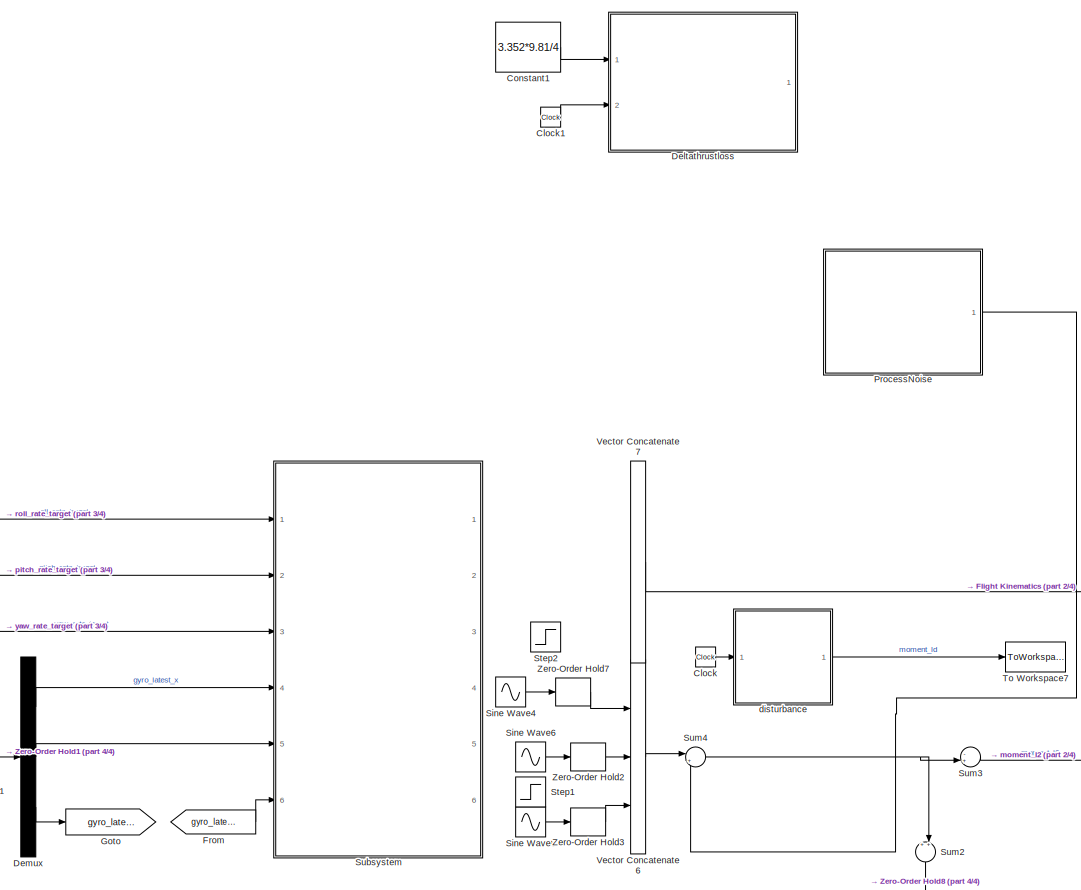
[diagram: root canvas - part 1/4, top center region]
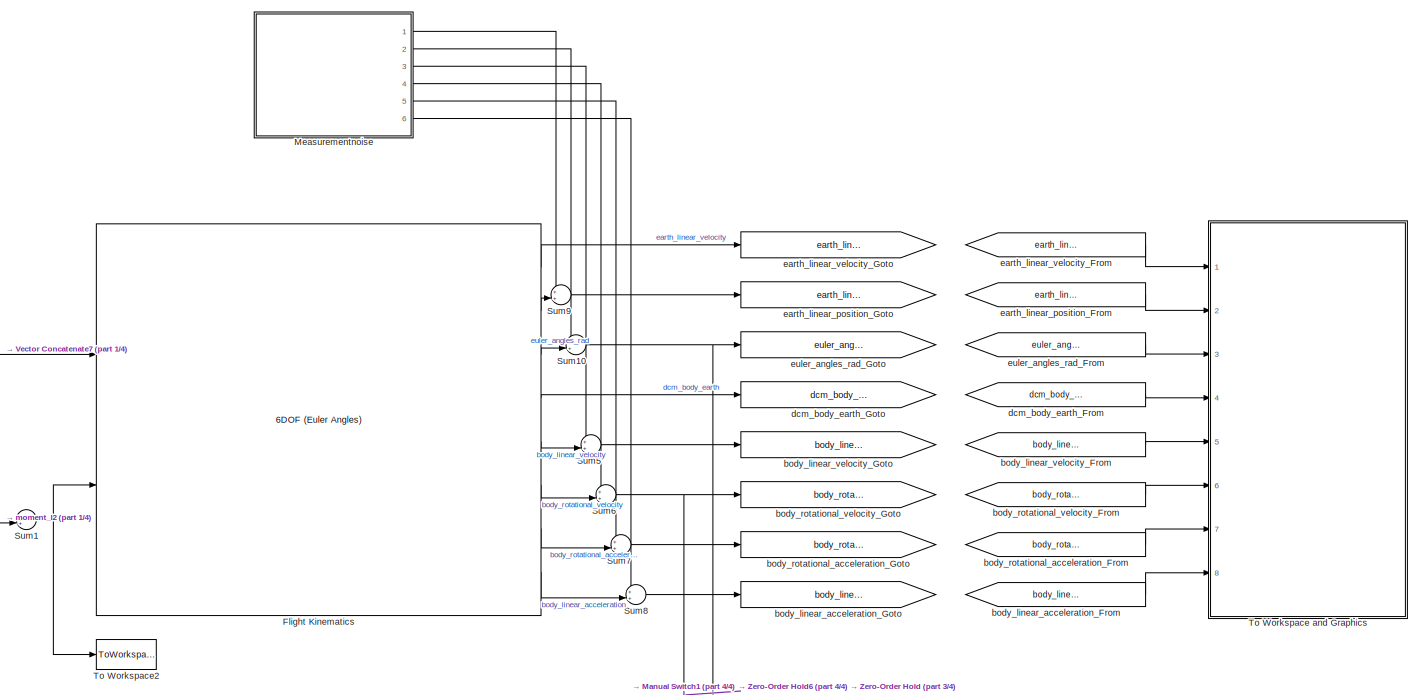
[diagram: root canvas - part 2/4, middle right region]
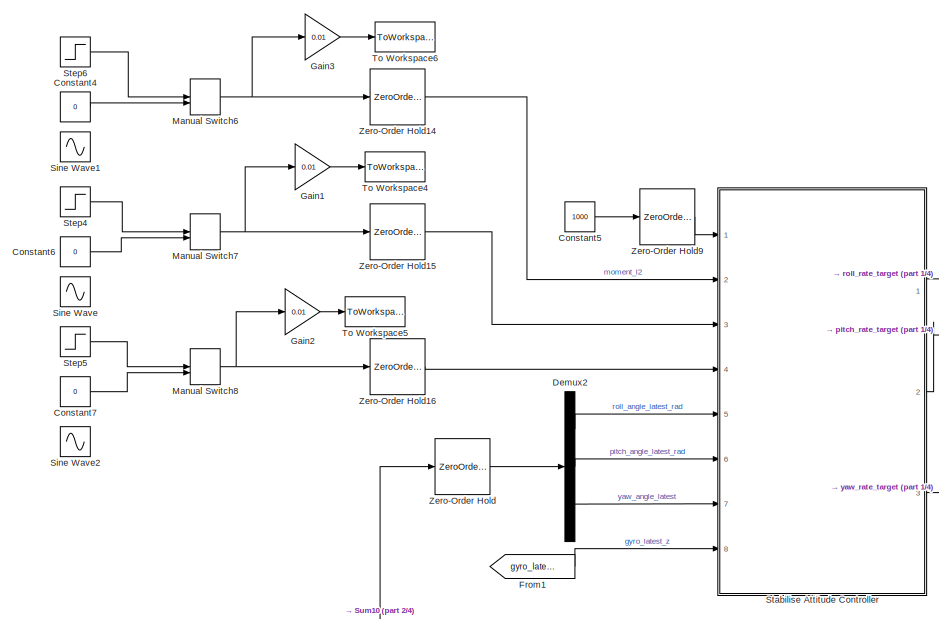
[diagram: root canvas - part 3/4, middle left region]
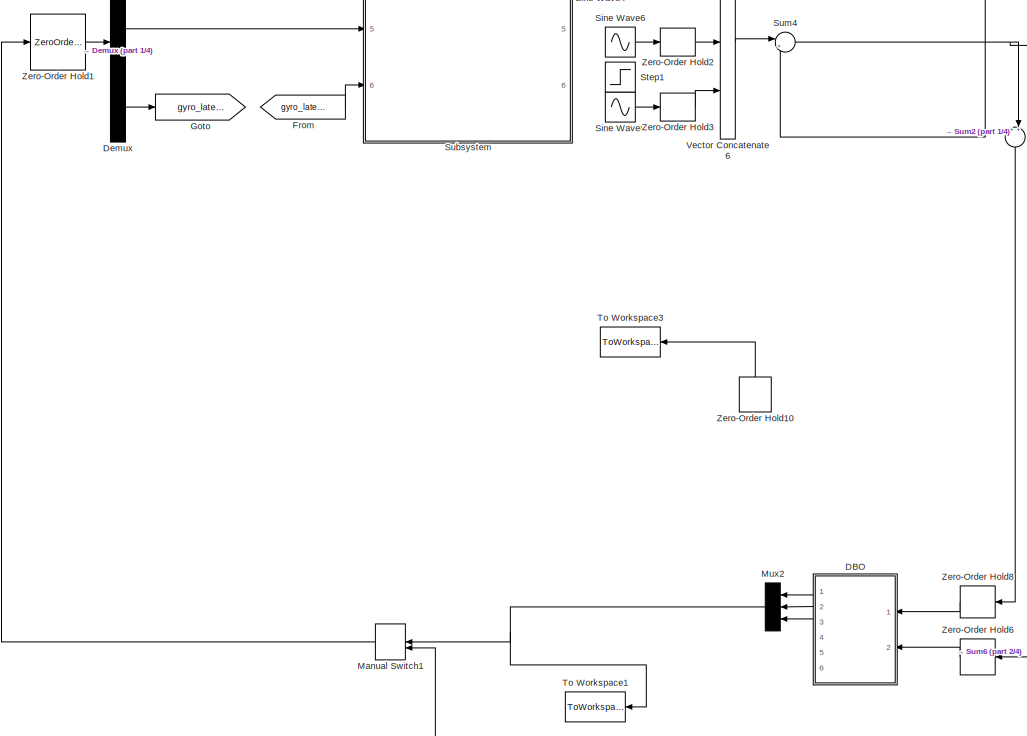
[diagram: root canvas - part 4/4, bottom center region]
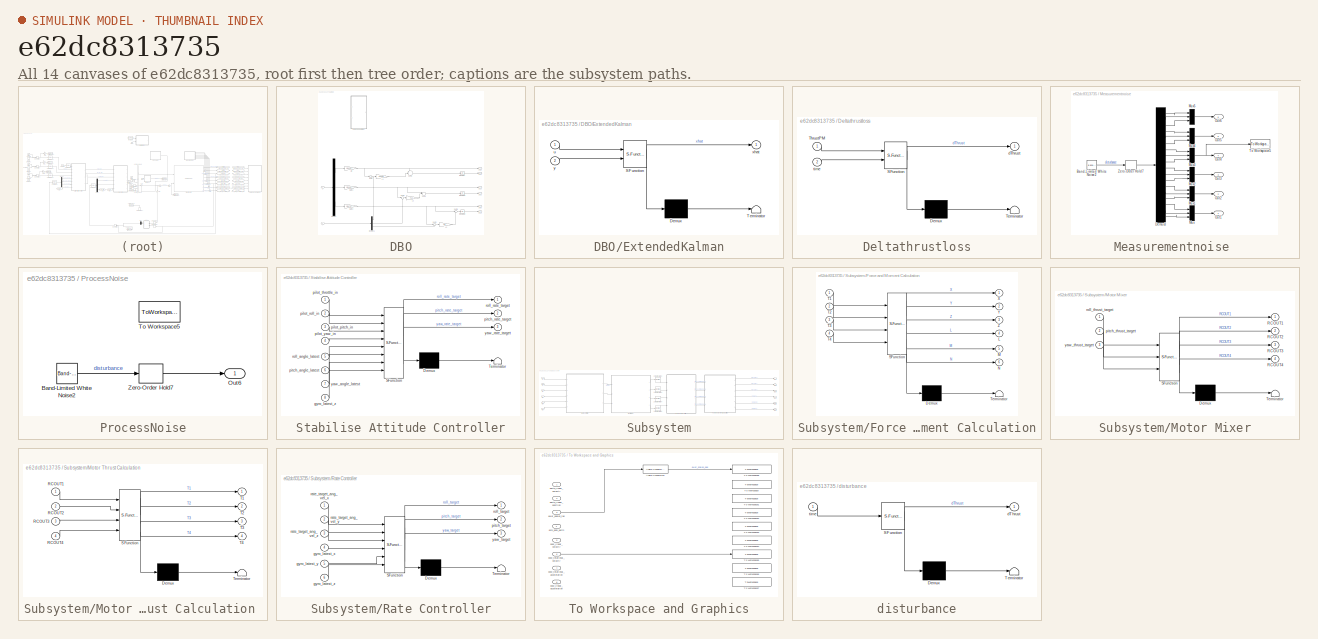
[diagram: thumbnail index - all 14 canvases of the model, root first then tree order]
MODEL slx_e62dc8313735
KIND model
CONFIG AbsTol = auto
CONFIG FixedStep = Ts
CONFIG MaxStep = auto
CONFIG MinStep = auto
CONFIG RelTol = 1e-3
CONFIG SampleTimeConstraint = Unconstrained
CONFIG Solver = VariableStepAuto
CONFIG SolverMode = Auto
CONFIG SolverName = VariableStepAuto
CONFIG StartTime = 0.0
CONFIG StopTime = 10
WORKSPACE source: MAT-file member
WORKSPACE MCOS: class17 (value not decoded)
BLOCK [Clock] Clock
BLOCK [Clock] Clock1
BLOCK [Constant] Constant1
  SampleTime = Ts
  Value = 3.352*9.81/4
BLOCK [Constant] Constant4
  SampleTime = 0
  Value = 0
BLOCK [Constant] Constant5
  SampleTime = Ts
  Value = 1000
BLOCK [Constant] Constant6
  SampleTime = 0
  Value = 0
BLOCK [Constant] Constant7
  SampleTime = 0
  Value = 0
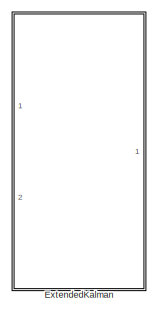
[diagram: DBO - part 1/2, top left region]
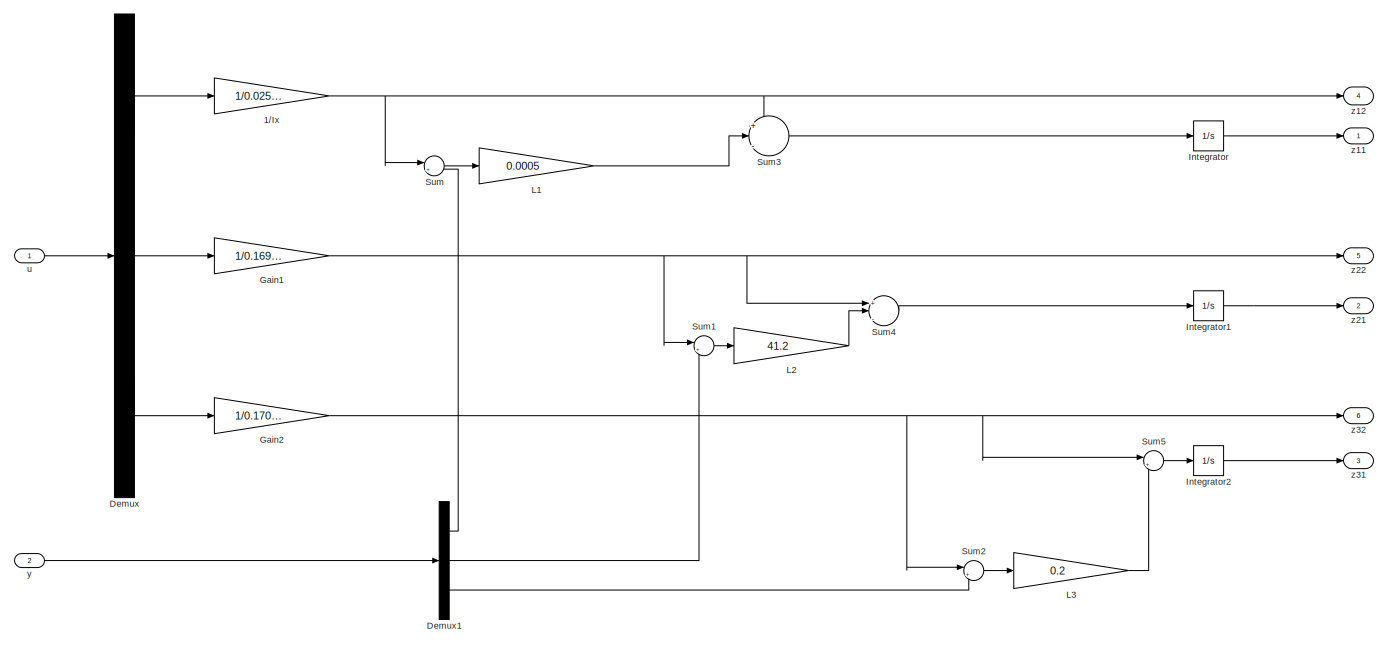
[diagram: DBO - part 2/2, full width, bottom band]
BLOCK [SubSystem] DBO
  Ports = [2, 6]
  RequestExecContextInheritance = off
  Variant = off
BLOCK [Gain] DBO/1//Ix
  Gain = 1/0.025028
  OutDataTypeStr = Inherit: Inherit via internal rule
  ParamDataTypeStr = Inherit: Inherit via internal rule
  SaturateOnIntegerOverflow = off
BLOCK [Demux] DBO/Demux
  DisplayOption = bar
  Outputs = 3
  Ports = [1, 3]
BLOCK [Demux] DBO/Demux1
  DisplayOption = bar
  Outputs = 3
  Ports = [1, 3]
BLOCK [SubSystem] DBO/ExtendedKalman
  Commented = on
  ErrorFcn = Stateflow.Translate.translate
  PermitHierarchicalResolution = ExplicitOnly
  Ports = [2, 1]
  RequestExecContextInheritance = off
  SFBlockType = MATLAB Function
  TreatAsAtomicUnit = on
  Variant = off
BLOCK [Demux] DBO/ExtendedKalman/ Demux 
  Outputs = 1
  Ports = [1, 1]
BLOCK [S-Function] DBO/ExtendedKalman/ SFunction 
  EnableBusSupport = on
  FunctionName = sf_sfun
  PortCounts = [2 2]
  Ports = [2, 2]
  SFunctionDeploymentMode = off
  Tag = Stateflow S-Function DOBC_implementation_Kalman 7
BLOCK [Terminator] DBO/ExtendedKalman/ Terminator 
BLOCK [Inport] DBO/ExtendedKalman/u
  IconDisplay = Port number
BLOCK [Outport] DBO/ExtendedKalman/xhat
  IconDisplay = Port number
BLOCK [Inport] DBO/ExtendedKalman/y
  IconDisplay = Port number
  Port = 2
BLOCK [Gain] DBO/Gain1
  Gain = 1/0.16926
  OutDataTypeStr = Inherit: Inherit via internal rule
  ParamDataTypeStr = Inherit: Inherit via internal rule
  SaturateOnIntegerOverflow = off
BLOCK [Gain] DBO/Gain2
  Gain = 1/0.170917
  OutDataTypeStr = Inherit: Inherit via internal rule
  ParamDataTypeStr = Inherit: Inherit via internal rule
  SaturateOnIntegerOverflow = off
BLOCK [Integrator] DBO/Integrator
  Ports = [1, 1]
BLOCK [Integrator] DBO/Integrator1
  Ports = [1, 1]
BLOCK [Integrator] DBO/Integrator2
  Ports = [1, 1]
BLOCK [Gain] DBO/L1
  Gain = 0.0005
  OutDataTypeStr = Inherit: Inherit via internal rule
  ParamDataTypeStr = Inherit: Inherit via internal rule
  SaturateOnIntegerOverflow = off
BLOCK [Gain] DBO/L2
  Gain = 41.2
  OutDataTypeStr = Inherit: Inherit via internal rule
  ParamDataTypeStr = Inherit: Inherit via internal rule
  SaturateOnIntegerOverflow = off
BLOCK [Gain] DBO/L3
  Gain = 0.2
  OutDataTypeStr = Inherit: Inherit via internal rule
  ParamDataTypeStr = Inherit: Inherit via internal rule
  SaturateOnIntegerOverflow = off
BLOCK [Sum] DBO/Sum
  IconShape = round
  InputSameDT = off
  Inputs = |+-
  OutDataTypeStr = Inherit: Inherit via internal rule
  Ports = [2, 1]
  SaturateOnIntegerOverflow = off
BLOCK [Sum] DBO/Sum1
  IconShape = round
  InputSameDT = off
  Inputs = |+-
  OutDataTypeStr = Inherit: Inherit via internal rule
  Ports = [2, 1]
  SaturateOnIntegerOverflow = off
BLOCK [Sum] DBO/Sum2
  IconShape = round
  InputSameDT = off
  Inputs = |+-
  OutDataTypeStr = Inherit: Inherit via internal rule
  Ports = [2, 1]
  SaturateOnIntegerOverflow = off
BLOCK [Sum] DBO/Sum3
  IconShape = round
  InputSameDT = off
  Inputs = +|-|+
  OutDataTypeStr = Inherit: Inherit via internal rule
  Ports = [3, 1]
  SaturateOnIntegerOverflow = off
BLOCK [Sum] DBO/Sum4
  IconShape = round
  InputSameDT = off
  Inputs = +|-|+
  OutDataTypeStr = Inherit: Inherit via internal rule
  Ports = [3, 1]
  SaturateOnIntegerOverflow = off
BLOCK [Sum] DBO/Sum5
  IconShape = round
  InputSameDT = off
  Inputs = |+-
  OutDataTypeStr = Inherit: Inherit via internal rule
  Ports = [2, 1]
  SaturateOnIntegerOverflow = off
BLOCK [Inport] DBO/u 
  IconDisplay = Port number
BLOCK [Inport] DBO/y
  IconDisplay = Port number
  Port = 2
BLOCK [Outport] DBO/z11 
  IconDisplay = Port number
BLOCK [Outport] DBO/z12
  IconDisplay = Port number
  Port = 4
BLOCK [Outport] DBO/z21 
  IconDisplay = Port number
  Port = 2
BLOCK [Outport] DBO/z22 
  IconDisplay = Port number
  Port = 5
BLOCK [Outport] DBO/z31 
  IconDisplay = Port number
  Port = 3
BLOCK [Outport] DBO/z32
  IconDisplay = Port number
  Port = 6
BLOCK [SubSystem] Deltathrustloss
  ErrorFcn = Stateflow.Translate.translate
  PermitHierarchicalResolution = ExplicitOnly
  Ports = [2, 1]
  RequestExecContextInheritance = off
  SFBlockType = MATLAB Function
  TreatAsAtomicUnit = on
  Variant = off
BLOCK [Demux] Deltathrustloss/ Demux 
  Outputs = 1
  Ports = [1, 1]
BLOCK [S-Function] Deltathrustloss/ SFunction 
  EnableBusSupport = on
  FunctionName = sf_sfun
  PortCounts = [2 2]
  Ports = [2, 2]
  SFunctionDeploymentMode = off
  Tag = Stateflow S-Function DOBC_implementation_Kalman 4
BLOCK [Terminator] Deltathrustloss/ Terminator 
BLOCK [Inport] Deltathrustloss/ThrustPM
  IconDisplay = Port number
BLOCK [Outport] Deltathrustloss/dThrust
  IconDisplay = Port number
BLOCK [Inport] Deltathrustloss/time
  IconDisplay = Port number
  Port = 2
BLOCK [Demux] Demux
  DisplayOption = bar
  Outputs = 3
  Ports = [1, 3]
BLOCK [Demux] Demux2
  DisplayOption = bar
  Outputs = 3
  Ports = [1, 3]
BLOCK [Reference] Flight Kinematics  REF=aerolib6dof2/6DOF (Euler Angles)
  Ports = [2, 8]
  SourceBlock = aerolib6dof2/6DOF (Euler Angles)
  SourceType = 6DOF EoM (Body Axis)
BLOCK [From] From
  GotoTag = gyro_latest_z
BLOCK [From] From1
  GotoTag = gyro_latest_z
BLOCK [Gain] Gain1
  Gain = 0.01
  OutDataTypeStr = Inherit: Inherit via internal rule
  ParamDataTypeStr = Inherit: Inherit via internal rule
  SaturateOnIntegerOverflow = off
BLOCK [Gain] Gain2
  Gain = 0.01
  OutDataTypeStr = Inherit: Inherit via internal rule
  ParamDataTypeStr = Inherit: Inherit via internal rule
  SaturateOnIntegerOverflow = off
BLOCK [Gain] Gain3
  Gain = 0.01
  OutDataTypeStr = Inherit: Inherit via internal rule
  ParamDataTypeStr = Inherit: Inherit via internal rule
  SaturateOnIntegerOverflow = off
BLOCK [Goto] Goto
  GotoTag = gyro_latest_z
BLOCK [ManualSwitch] Manual Switch1
BLOCK [ManualSwitch] Manual Switch6
BLOCK [ManualSwitch] Manual Switch7
BLOCK [ManualSwitch] Manual Switch8
  CurrentSetting = 0
BLOCK [SubSystem] Measurementnoise 
  Ports = [0, 6]
  RequestExecContextInheritance = off
  Variant = off
BLOCK [Reference] Measurementnoise /Band-Limited White Noise2  REF=simulink/Sources/Band-Limited
White Noise
  Ports = [0, 1]
  SourceBlock = simulink/Sources/Band-Limited\nWhite Noise
  SourceType = Band-Limited White Noise.
BLOCK [Demux] Measurementnoise /Demux3
  DisplayOption = bar
  Outputs = 18
  Ports = [1, 18]
BLOCK [Mux] Measurementnoise /Mux
  DisplayOption = bar
  Inputs = 3
  Ports = [3, 1]
BLOCK [Mux] Measurementnoise /Mux1
  DisplayOption = bar
  Inputs = 3
  Ports = [3, 1]
BLOCK [Mux] Measurementnoise /Mux2
  DisplayOption = bar
  Inputs = 3
  Ports = [3, 1]
BLOCK [Mux] Measurementnoise /Mux3
  DisplayOption = bar
  Inputs = 3
  Ports = [3, 1]
BLOCK [Mux] Measurementnoise /Mux4
  DisplayOption = bar
  Inputs = 3
  Ports = [3, 1]
BLOCK [Mux] Measurementnoise /Mux5
  DisplayOption = bar
  Inputs = 3
  Ports = [3, 1]
BLOCK [Outport] Measurementnoise /Out1
  IconDisplay = Port number
BLOCK [Outport] Measurementnoise /Out2
  IconDisplay = Port number
  Port = 2
BLOCK [Outport] Measurementnoise /Out3
  IconDisplay = Port number
  Port = 3
BLOCK [Outport] Measurementnoise /Out4
  IconDisplay = Port number
  Port = 4
BLOCK [Outport] Measurementnoise /Out5
  IconDisplay = Port number
  Port = 5
BLOCK [Outport] Measurementnoise /Out6
  IconDisplay = Port number
  Port = 6
BLOCK [ToWorkspace] Measurementnoise /To Workspace5
  FixptAsFi = on
  MaxDataPoints = inf
  Ports = [1]
  SampleTime = -1
  Save2DSignal = 3-D array (concatenate along third dimension)
  VariableName = whitenoise
BLOCK [ZeroOrderHold] Measurementnoise /Zero-Order Hold7
  SampleTime = dtzoh
BLOCK [Mux] Mux2
  DisplayOption = bar
  Inputs = 3
  Ports = [3, 1]
BLOCK [SubSystem] ProcessNoise
  Ports = [0, 1]
  RequestExecContextInheritance = off
  Variant = off
BLOCK [Reference] ProcessNoise/Band-Limited White Noise2  REF=simulink/Sources/Band-Limited
White Noise
  Ports = [0, 1]
  SourceBlock = simulink/Sources/Band-Limited\nWhite Noise
  SourceType = Band-Limited White Noise.
BLOCK [Outport] ProcessNoise/Out6
  IconDisplay = Port number
BLOCK [ToWorkspace] ProcessNoise/To Workspace5
  FixptAsFi = on
  MaxDataPoints = inf
  Ports = [1]
  SampleTime = -1
  Save2DSignal = 3-D array (concatenate along third dimension)
  VariableName = whitenoiseprocess
BLOCK [ZeroOrderHold] ProcessNoise/Zero-Order Hold7
  SampleTime = dtzoh
BLOCK [Sin] Sine Wave
  Amplitude = 100
  Ports = [0, 1]
  SampleTime = 0
BLOCK [Sin] Sine Wave1
  Amplitude = 100
  Ports = [0, 1]
  SampleTime = 0
BLOCK [Sin] Sine Wave2
  Amplitude = 100
  Ports = [0, 1]
  SampleTime = 0
BLOCK [Sin] Sine Wave4
  Amplitude = 0.5
  Frequency = 6
  Ports = [0, 1]
  SampleTime = 0
BLOCK [Sin] Sine Wave6
  Amplitude = 0.5
  Frequency = 6
  Ports = [0, 1]
  SampleTime = 0
BLOCK [Sin] Sine Wave8
  Amplitude = 0.0005
  Frequency = 0.5
  Ports = [0, 1]
  SampleTime = 0
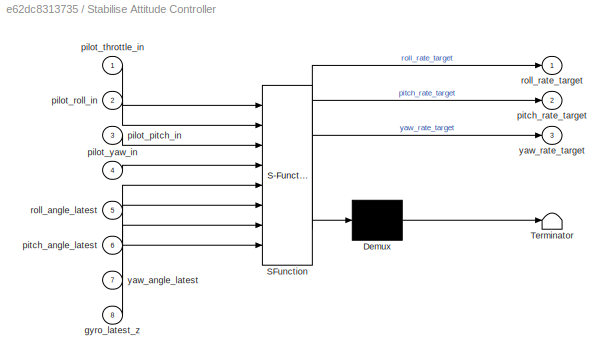
BLOCK [SubSystem] Stabilise Attitude Controller
  ErrorFcn = Stateflow.Translate.translate
  PermitHierarchicalResolution = ExplicitOnly
  Ports = [8, 3]
  RequestExecContextInheritance = off
  SFBlockType = MATLAB Function
  TreatAsAtomicUnit = on
  Variant = off
BLOCK [Demux] Stabilise Attitude Controller/ Demux 
  Outputs = 1
  Ports = [1, 1]
BLOCK [S-Function] Stabilise Attitude Controller/ SFunction 
  EnableBusSupport = on
  FunctionName = sf_sfun
  PortCounts = [8 4]
  Ports = [8, 4]
  SFunctionDeploymentMode = off
  Tag = Stateflow S-Function DOBC_implementation_Kalman 2
BLOCK [Terminator] Stabilise Attitude Controller/ Terminator 
BLOCK [Inport] Stabilise Attitude Controller/gyro_latest_z
  IconDisplay = Port number
  Port = 8
BLOCK [Inport] Stabilise Attitude Controller/pilot_pitch_in
  IconDisplay = Port number
  Port = 3
BLOCK [Inport] Stabilise Attitude Controller/pilot_roll_in
  IconDisplay = Port number
  Port = 2
BLOCK [Inport] Stabilise Attitude Controller/pilot_throttle_in
  IconDisplay = Port number
BLOCK [Inport] Stabilise Attitude Controller/pilot_yaw_in
  IconDisplay = Port number
  Port = 4
BLOCK [Inport] Stabilise Attitude Controller/pitch_angle_latest
  IconDisplay = Port number
  Port = 6
BLOCK [Outport] Stabilise Attitude Controller/pitch_rate_target
  IconDisplay = Port number
  Port = 2
BLOCK [Inport] Stabilise Attitude Controller/roll_angle_latest
  IconDisplay = Port number
  Port = 5
BLOCK [Outport] Stabilise Attitude Controller/roll_rate_target
  IconDisplay = Port number
BLOCK [Inport] Stabilise Attitude Controller/yaw_angle_latest
  IconDisplay = Port number
  Port = 7
BLOCK [Outport] Stabilise Attitude Controller/yaw_rate_target
  IconDisplay = Port number
  Port = 3
BLOCK [Step] Step1
  SampleTime = 0
  Time = 2
BLOCK [Step] Step2
  After = 0.5
  SampleTime = 0
  Time = 0.5
BLOCK [Step] Step4
  After = 1000
  SampleTime = 0
  Time = 0.1
BLOCK [Step] Step5
  After = 1000
  SampleTime = 0
  Time = 0.1
BLOCK [Step] Step6
  After = 1000
  SampleTime = 0
  Time = 0.5
BLOCK [SubSystem] Subsystem
  Ports = [6, 6]
  RequestExecContextInheritance = off
  Variant = off
BLOCK [SubSystem] Subsystem/Force and Moment Calculation
  ErrorFcn = Stateflow.Translate.translate
  PermitHierarchicalResolution = ExplicitOnly
  Ports = [4, 6]
  RequestExecContextInheritance = off
  SFBlockType = MATLAB Function
  TreatAsAtomicUnit = on
  Variant = off
BLOCK [Demux] Subsystem/Force and Moment Calculation/ Demux 
  Outputs = 1
  Ports = [1, 1]
BLOCK [S-Function] Subsystem/Force and Moment Calculation/ SFunction 
  EnableBusSupport = on
  FunctionName = sf_sfun
  PortCounts = [4 7]
  Ports = [4, 7]
  SFunctionDeploymentMode = off
  Tag = Stateflow S-Function DOBC_implementation_Kalman 6
BLOCK [Terminator] Subsystem/Force and Moment Calculation/ Terminator 
BLOCK [Outport] Subsystem/Force and Moment Calculation/L
  IconDisplay = Port number
  Port = 4
BLOCK [Outport] Subsystem/Force and Moment Calculation/M
  IconDisplay = Port number
  Port = 5
BLOCK [Outport] Subsystem/Force and Moment Calculation/N
  IconDisplay = Port number
  Port = 6
BLOCK [Inport] Subsystem/Force and Moment Calculation/T1
  IconDisplay = Port number
BLOCK [Inport] Subsystem/Force and Moment Calculation/T2
  IconDisplay = Port number
  Port = 2
BLOCK [Inport] Subsystem/Force and Moment Calculation/T3
  IconDisplay = Port number
  Port = 3
BLOCK [Inport] Subsystem/Force and Moment Calculation/T4
  IconDisplay = Port number
  Port = 4
BLOCK [Outport] Subsystem/Force and Moment Calculation/X
  IconDisplay = Port number
BLOCK [Outport] Subsystem/Force and Moment Calculation/Y
  IconDisplay = Port number
  Port = 2
BLOCK [Outport] Subsystem/Force and Moment Calculation/Z
  IconDisplay = Port number
  Port = 3
BLOCK [Inport] Subsystem/In1
  IconDisplay = Port number
BLOCK [Inport] Subsystem/In2
  IconDisplay = Port number
  Port = 2
BLOCK [Inport] Subsystem/In3
  IconDisplay = Port number
  Port = 6
BLOCK [Inport] Subsystem/In5
  IconDisplay = Port number
  Port = 3
BLOCK [Inport] Subsystem/In6
  IconDisplay = Port number
  Port = 5
BLOCK [Inport] Subsystem/In7
  IconDisplay = Port number
  Port = 4
BLOCK [SubSystem] Subsystem/Motor Mixer
  ErrorFcn = Stateflow.Translate.translate
  PermitHierarchicalResolution = ExplicitOnly
  Ports = [3, 4]
  RequestExecContextInheritance = off
  SFBlockType = MATLAB Function
  TreatAsAtomicUnit = on
  Variant = off
BLOCK [Demux] Subsystem/Motor Mixer/ Demux 
  Outputs = 1
  Ports = [1, 1]
BLOCK [S-Function] Subsystem/Motor Mixer/ SFunction 
  EnableBusSupport = on
  FunctionName = sf_sfun
  PortCounts = [3 5]
  Ports = [3, 5]
  SFunctionDeploymentMode = off
  Tag = Stateflow S-Function DOBC_implementation_Kalman 5
BLOCK [Terminator] Subsystem/Motor Mixer/ Terminator 
BLOCK [Outport] Subsystem/Motor Mixer/RCOUT1
  IconDisplay = Port number
BLOCK [Outport] Subsystem/Motor Mixer/RCOUT2
  IconDisplay = Port number
  Port = 2
BLOCK [Outport] Subsystem/Motor Mixer/RCOUT3
  IconDisplay = Port number
  Port = 3
BLOCK [Outport] Subsystem/Motor Mixer/RCOUT4
  IconDisplay = Port number
  Port = 4
BLOCK [Inport] Subsystem/Motor Mixer/pitch_thrust_target
  IconDisplay = Port number
  Port = 2
BLOCK [Inport] Subsystem/Motor Mixer/roll_thrust_target
  IconDisplay = Port number
BLOCK [Inport] Subsystem/Motor Mixer/yaw_thrust_target
  IconDisplay = Port number
  Port = 3
BLOCK [SubSystem] Subsystem/Motor Thrust Calculation 
  ErrorFcn = Stateflow.Translate.translate
  PermitHierarchicalResolution = ExplicitOnly
  Ports = [4, 4]
  RequestExecContextInheritance = off
  SFBlockType = MATLAB Function
  TreatAsAtomicUnit = on
  Variant = off
BLOCK [Demux] Subsystem/Motor Thrust Calculation / Demux 
  Outputs = 1
  Ports = [1, 1]
BLOCK [S-Function] Subsystem/Motor Thrust Calculation / SFunction 
  EnableBusSupport = on
  FunctionName = sf_sfun
  PortCounts = [4 5]
  Ports = [4, 5]
  SFunctionDeploymentMode = off
  Tag = Stateflow S-Function DOBC_implementation_Kalman 8
BLOCK [Terminator] Subsystem/Motor Thrust Calculation / Terminator 
BLOCK [Inport] Subsystem/Motor Thrust Calculation /RCOUT1
  IconDisplay = Port number
BLOCK [Inport] Subsystem/Motor Thrust Calculation /RCOUT2
  IconDisplay = Port number
  Port = 2
BLOCK [Inport] Subsystem/Motor Thrust Calculation /RCOUT3
  IconDisplay = Port number
  Port = 3
BLOCK [Inport] Subsystem/Motor Thrust Calculation /RCOUT4
  IconDisplay = Port number
  Port = 4
BLOCK [Outport] Subsystem/Motor Thrust Calculation /T1
  IconDisplay = Port number
BLOCK [Outport] Subsystem/Motor Thrust Calculation /T2
  IconDisplay = Port number
  Port = 2
BLOCK [Outport] Subsystem/Motor Thrust Calculation /T3
  IconDisplay = Port number
  Port = 3
BLOCK [Outport] Subsystem/Motor Thrust Calculation /T4
  IconDisplay = Port number
  Port = 4
BLOCK [Outport] Subsystem/Out1
  IconDisplay = Port number
BLOCK [Outport] Subsystem/Out2
  IconDisplay = Port number
  Port = 2
BLOCK [Outport] Subsystem/Out3
  IconDisplay = Port number
  Port = 3
BLOCK [Outport] Subsystem/Out4
  IconDisplay = Port number
  Port = 4
BLOCK [Outport] Subsystem/Out5
  IconDisplay = Port number
  Port = 5
BLOCK [Outport] Subsystem/Out6
  IconDisplay = Port number
  Port = 6
BLOCK [SubSystem] Subsystem/Rate Controller
  ErrorFcn = Stateflow.Translate.translate
  PermitHierarchicalResolution = ExplicitOnly
  Ports = [6, 3]
  RequestExecContextInheritance = off
  SFBlockType = MATLAB Function
  TreatAsAtomicUnit = on
  Variant = off
BLOCK [Demux] Subsystem/Rate Controller/ Demux 
  Outputs = 1
  Ports = [1, 1]
BLOCK [S-Function] Subsystem/Rate Controller/ SFunction 
  EnableBusSupport = on
  FunctionName = sf_sfun
  PortCounts = [6 4]
  Ports = [6, 4]
  SFunctionDeploymentMode = off
  Tag = Stateflow S-Function DOBC_implementation_Kalman 1
BLOCK [Terminator] Subsystem/Rate Controller/ Terminator 
BLOCK [Inport] Subsystem/Rate Controller/gyro_latest_x
  IconDisplay = Port number
  Port = 4
BLOCK [Inport] Subsystem/Rate Controller/gyro_latest_y
  IconDisplay = Port number
  Port = 5
BLOCK [Inport] Subsystem/Rate Controller/gyro_latest_z
  IconDisplay = Port number
  Port = 6
BLOCK [Outport] Subsystem/Rate Controller/pitch_target
  IconDisplay = Port number
  Port = 2
BLOCK [Inport] Subsystem/Rate Controller/rate_target_ang_vel_x
  IconDisplay = Port number
BLOCK [Inport] Subsystem/Rate Controller/rate_target_ang_vel_y
  IconDisplay = Port number
  Port = 2
BLOCK [Inport] Subsystem/Rate Controller/rate_target_ang_vel_z
  IconDisplay = Port number
  Port = 3
BLOCK [Outport] Subsystem/Rate Controller/roll_target
  IconDisplay = Port number
BLOCK [Outport] Subsystem/Rate Controller/yaw_target
  IconDisplay = Port number
  Port = 3
BLOCK [ZeroOrderHold] Subsystem/Zero-Order Hold2
  SampleTime = dtzoh
BLOCK [ZeroOrderHold] Subsystem/Zero-Order Hold3
  SampleTime = dtzoh
BLOCK [ZeroOrderHold] Subsystem/Zero-Order Hold4
  SampleTime = dtzoh
BLOCK [ZeroOrderHold] Subsystem/Zero-Order Hold5
  SampleTime = dtzoh
BLOCK [Sum] Sum1
  IconShape = round
  InputSameDT = off
  Inputs = ++|
  OutDataTypeStr = Inherit: Inherit via internal rule
  Ports = [2, 1]
  SaturateOnIntegerOverflow = off
BLOCK [Sum] Sum10
  IconShape = round
  InputSameDT = off
  Inputs = ++|
  OutDataTypeStr = Inherit: Inherit via internal rule
  Ports = [2, 1]
  SaturateOnIntegerOverflow = off
BLOCK [Sum] Sum2
  IconShape = round
  InputSameDT = off
  Inputs = ++|
  OutDataTypeStr = Inherit: Inherit via internal rule
  Ports = [2, 1]
  SaturateOnIntegerOverflow = off
BLOCK [Sum] Sum3
  IconShape = round
  InputSameDT = off
  Inputs = -+|
  OutDataTypeStr = Inherit: Inherit via internal rule
  Ports = [2, 1]
  SaturateOnIntegerOverflow = off
BLOCK [Sum] Sum4
  IconShape = round
  InputSameDT = off
  Inputs = |++
  OutDataTypeStr = Inherit: Inherit via internal rule
  Ports = [2, 1]
  SaturateOnIntegerOverflow = off
BLOCK [Sum] Sum5
  IconShape = round
  InputSameDT = off
  Inputs = ++|
  OutDataTypeStr = Inherit: Inherit via internal rule
  Ports = [2, 1]
  SaturateOnIntegerOverflow = off
BLOCK [Sum] Sum6
  IconShape = round
  InputSameDT = off
  Inputs = ++|
  OutDataTypeStr = Inherit: Inherit via internal rule
  Ports = [2, 1]
  SaturateOnIntegerOverflow = off
BLOCK [Sum] Sum7
  IconShape = round
  InputSameDT = off
  Inputs = ++|
  OutDataTypeStr = Inherit: Inherit via internal rule
  Ports = [2, 1]
  SaturateOnIntegerOverflow = off
BLOCK [Sum] Sum8
  IconShape = round
  InputSameDT = off
  Inputs = ++|
  OutDataTypeStr = Inherit: Inherit via internal rule
  Ports = [2, 1]
  SaturateOnIntegerOverflow = off
BLOCK [Sum] Sum9
  IconShape = round
  InputSameDT = off
  Inputs = ++|
  OutDataTypeStr = Inherit: Inherit via internal rule
  Ports = [2, 1]
  SaturateOnIntegerOverflow = off
BLOCK [SubSystem] To Workspace and Graphics
  Ports = [8]
  RequestExecContextInheritance = off
  Variant = off
BLOCK [Reference] To Workspace and Graphics/Angle Conversion  REF=aerolibconvert2/Angle Conversion
  Ports = [1, 1]
  SourceBlock = aerolibconvert2/Angle Conversion
  SourceType = Angle Conversion
BLOCK [ToWorkspace] To Workspace and Graphics/To Workspace
  FixptAsFi = on
  MaxDataPoints = inf
  Ports = [1]
  SampleTime = -1
  Save2DSignal = 3-D array (concatenate along third dimension)
  VariableName = earth_linear_velocity
BLOCK [ToWorkspace] To Workspace and Graphics/To Workspace1
  FixptAsFi = on
  MaxDataPoints = inf
  Ports = [1]
  SampleTime = -1
  Save2DSignal = 3-D array (concatenate along third dimension)
  VariableName = earth_linear_position
BLOCK [ToWorkspace] To Workspace and Graphics/To Workspace2
  FixptAsFi = on
  MaxDataPoints = inf
  Ports = [1]
  SampleTime = -1
  Save2DSignal = 3-D array (concatenate along third dimension)
  VariableName = euler_angles_rad
BLOCK [ToWorkspace] To Workspace and Graphics/To Workspace3
  FixptAsFi = on
  MaxDataPoints = inf
  Ports = [1]
  SampleTime = -1
  Save2DSignal = 3-D array (concatenate along third dimension)
  VariableName = dcm_body_earth
BLOCK [ToWorkspace] To Workspace and Graphics/To Workspace4
  FixptAsFi = on
  MaxDataPoints = inf
  Ports = [1]
  SampleTime = -1
  Save2DSignal = 3-D array (concatenate along third dimension)
  VariableName = body_linear_velocity
BLOCK [ToWorkspace] To Workspace and Graphics/To Workspace5
  FixptAsFi = on
  MaxDataPoints = inf
  Ports = [1]
  SampleTime = -1
  Save2DSignal = 3-D array (concatenate along third dimension)
  VariableName = body_rotational_velocity
BLOCK [ToWorkspace] To Workspace and Graphics/To Workspace6
  FixptAsFi = on
  MaxDataPoints = inf
  Ports = [1]
  SampleTime = -1
  Save2DSignal = 3-D array (concatenate along third dimension)
  VariableName = body_rotational_acceleration
BLOCK [ToWorkspace] To Workspace and Graphics/To Workspace7
  FixptAsFi = on
  MaxDataPoints = inf
  Ports = [1]
  SampleTime = -1
  Save2DSignal = 3-D array (concatenate along third dimension)
  VariableName = body_linear_acceleration
BLOCK [ToWorkspace] To Workspace and Graphics/To Workspace8
  FixptAsFi = on
  MaxDataPoints = inf
  Ports = [1]
  SampleTime = -1
  Save2DSignal = 3-D array (concatenate along third dimension)
  VariableName = euler_angles_deg
BLOCK [Inport] To Workspace and Graphics/body_linear_acceleration
  IconDisplay = Port number
  Port = 8
BLOCK [Inport] To Workspace and Graphics/body_linear_velocity
  IconDisplay = Port number
  Port = 5
BLOCK [Inport] To Workspace and Graphics/body_rotational_acceleration
  IconDisplay = Port number
  Port = 7
BLOCK [Inport] To Workspace and Graphics/body_rotational_velocity
  IconDisplay = Port number
  Port = 6
BLOCK [Inport] To Workspace and Graphics/dcm_body_earth
  IconDisplay = Port number
  Port = 4
BLOCK [Inport] To Workspace and Graphics/earth_linear_position
  IconDisplay = Port number
  Port = 2
BLOCK [Inport] To Workspace and Graphics/earth_linear_velocity
  IconDisplay = Port number
BLOCK [Inport] To Workspace and Graphics/euler_angles_rad
  IconDisplay = Port number
  Port = 3
BLOCK [ToWorkspace] To Workspace1
  FixptAsFi = on
  MaxDataPoints = inf
  Ports = [1]
  SampleTime = -1
  Save2DSignal = 3-D array (concatenate along third dimension)
  VariableName = xhat
BLOCK [ToWorkspace] To Workspace2
  FixptAsFi = on
  MaxDataPoints = inf
  Ports = [1]
  SampleTime = -1
  Save2DSignal = 3-D array (concatenate along third dimension)
  VariableName = moment
BLOCK [ToWorkspace] To Workspace3
  FixptAsFi = on
  MaxDataPoints = inf
  Ports = [1]
  SampleTime = -1
  Save2DSignal = 3-D array (concatenate along third dimension)
  VariableName = dhat
BLOCK [ToWorkspace] To Workspace4
  FixptAsFi = on
  MaxDataPoints = inf
  Ports = [1]
  SampleTime = -1
  Save2DSignal = 3-D array (concatenate along third dimension)
  VariableName = refpitch
BLOCK [ToWorkspace] To Workspace5
  FixptAsFi = on
  MaxDataPoints = inf
  Ports = [1]
  SampleTime = -1
  Save2DSignal = 3-D array (concatenate along third dimension)
  VariableName = refyaw
BLOCK [ToWorkspace] To Workspace6
  FixptAsFi = on
  MaxDataPoints = inf
  Ports = [1]
  SampleTime = -1
  Save2DSignal = 3-D array (concatenate along third dimension)
  VariableName = refroll
BLOCK [ToWorkspace] To Workspace7
  FixptAsFi = on
  MaxDataPoints = inf
  Ports = [1]
  SampleTime = -1
  Save2DSignal = 3-D array (concatenate along third dimension)
  VariableName = d
BLOCK [Concatenate] Vector Concatenate6
  NumInputs = 3
  Ports = [3, 1]
BLOCK [Concatenate] Vector Concatenate7
  NumInputs = 3
  Ports = [3, 1]
BLOCK [ZeroOrderHold] Zero-Order Hold
  SampleTime = dtzoh
BLOCK [ZeroOrderHold] Zero-Order Hold1
  SampleTime = dtzoh
BLOCK [ZeroOrderHold] Zero-Order Hold10
  SampleTime = dtzoh
BLOCK [ZeroOrderHold] Zero-Order Hold14
  SampleTime = dtzoh
BLOCK [ZeroOrderHold] Zero-Order Hold15
  SampleTime = dtzoh
BLOCK [ZeroOrderHold] Zero-Order Hold16
  SampleTime = dtzoh
BLOCK [ZeroOrderHold] Zero-Order Hold2
  SampleTime = dtzoh
BLOCK [ZeroOrderHold] Zero-Order Hold3
  SampleTime = dtzoh
BLOCK [ZeroOrderHold] Zero-Order Hold6
  SampleTime = dtzoh
BLOCK [ZeroOrderHold] Zero-Order Hold7
  SampleTime = dtzoh
BLOCK [ZeroOrderHold] Zero-Order Hold8
  SampleTime = dtzoh
BLOCK [ZeroOrderHold] Zero-Order Hold9
  SampleTime = dtzoh
BLOCK [From] body_linear_acceleration_From
  GotoTag = body_linear_acceleration
  TagVisibility = global
BLOCK [Goto] body_linear_acceleration_Goto
  GotoTag = body_linear_acceleration
  TagVisibility = global
BLOCK [From] body_linear_velocity_From
  GotoTag = body_linear_velocity
  TagVisibility = global
BLOCK [Goto] body_linear_velocity_Goto
  GotoTag = body_linear_velocity
  TagVisibility = global
BLOCK [From] body_rotational_acceleration_From
  GotoTag = body_rotational_acceleration
  TagVisibility = global
BLOCK [Goto] body_rotational_acceleration_Goto
  GotoTag = body_rotational_acceleration
  TagVisibility = global
BLOCK [From] body_rotational_velocity_From
  GotoTag = body_rotational_velocity
  TagVisibility = global
BLOCK [Goto] body_rotational_velocity_Goto
  GotoTag = body_rotational_velocity
  TagVisibility = global
BLOCK [From] dcm_body_earth_From
  GotoTag = dcm_body_earth
  TagVisibility = global
BLOCK [Goto] dcm_body_earth_Goto
  GotoTag = dcm_body_earth
  TagVisibility = global
BLOCK [SubSystem] disturbance
  ErrorFcn = Stateflow.Translate.translate
  PermitHierarchicalResolution = ExplicitOnly
  Ports = [1, 1]
  RequestExecContextInheritance = off
  SFBlockType = MATLAB Function
  TreatAsAtomicUnit = on
  Variant = off
BLOCK [Demux] disturbance/ Demux 
  Outputs = 1
  Ports = [1, 1]
BLOCK [S-Function] disturbance/ SFunction 
  EnableBusSupport = on
  FunctionName = sf_sfun
  PortCounts = [1 2]
  Ports = [1, 2]
  SFunctionDeploymentMode = off
  Tag = Stateflow S-Function DOBC_implementation_Kalman 3
BLOCK [Terminator] disturbance/ Terminator 
BLOCK [Outport] disturbance/dThrust
  IconDisplay = Port number
BLOCK [Inport] disturbance/time
  IconDisplay = Port number
BLOCK [From] earth_linear_position_From
  GotoTag = earth_linear_position
  TagVisibility = global
BLOCK [Goto] earth_linear_position_Goto
  GotoTag = earth_linear_position
  TagVisibility = global
BLOCK [From] earth_linear_velocity_From
  GotoTag = earth_linear_velocity
  TagVisibility = global
BLOCK [Goto] earth_linear_velocity_Goto
  GotoTag = earth_linear_velocity
  TagVisibility = global
BLOCK [From] euler_angles_rad_From
  GotoTag = euler_angles_rad
  TagVisibility = global
BLOCK [Goto] euler_angles_rad_Goto
  GotoTag = euler_angles_rad
  TagVisibility = global
LINE Clock1:1 -> Deltathrustloss:2
LINE Clock:1 -> disturbance:1
LINE Constant1:1 -> Deltathrustloss:1
LINE Constant4:1 -> Manual Switch6:2
LINE Constant5:1 -> Zero-Order Hold9:1
LINE Constant6:1 -> Manual Switch7:2
LINE Constant7:1 -> Manual Switch8:2
NET DBO/1//Ix:1 -> DBO/Sum3:1, DBO/Sum:1, DBO/z12:1
LINE DBO/Demux1:1 -> DBO/Sum:2
LINE DBO/Demux1:2 -> DBO/Sum1:2
LINE DBO/Demux1:3 -> DBO/Sum2:2
LINE DBO/Demux:1 -> DBO/1//Ix:1
LINE DBO/Demux:2 -> DBO/Gain1:1
LINE DBO/Demux:3 -> DBO/Gain2:1
NET DBO/Gain1:1 -> DBO/Sum1:1, DBO/Sum4:1, DBO/z22 :1
NET DBO/Gain2:1 -> DBO/Sum2:1, DBO/Sum5:1, DBO/z32:1
LINE DBO/Integrator1:1 -> DBO/z21 :1
LINE DBO/Integrator2:1 -> DBO/z31 :1
LINE DBO/Integrator:1 -> DBO/z11 :1
LINE DBO/L1:1 -> DBO/Sum3:2
LINE DBO/L2:1 -> DBO/Sum4:2
LINE DBO/L3:1 -> DBO/Sum5:2
LINE DBO/Sum1:1 -> DBO/L2:1
LINE DBO/Sum2:1 -> DBO/L3:1
LINE DBO/Sum3:1 -> DBO/Integrator:1
LINE DBO/Sum4:1 -> DBO/Integrator1:1
LINE DBO/Sum5:1 -> DBO/Integrator2:1
LINE DBO/Sum:1 -> DBO/L1:1
LINE DBO/u :1 -> DBO/Demux:1
LINE DBO/y:1 -> DBO/Demux1:1
LINE DBO:1 -> Mux2:1
LINE DBO:2 -> Mux2:2
LINE DBO:3 -> Mux2:3
LINE Demux2:1 -> Stabilise Attitude Controller:5
LINE Demux2:2 -> Stabilise Attitude Controller:6
LINE Demux2:3 -> Stabilise Attitude Controller:7
LINE Demux:1 -> Subsystem:4
LINE Demux:2 -> Subsystem:5
LINE Demux:3 -> Goto:1
LINE Flight Kinematics:1 -> earth_linear_velocity_Goto:1
LINE Flight Kinematics:2 -> Sum9:2
LINE Flight Kinematics:3 -> Sum10:2
LINE Flight Kinematics:4 -> dcm_body_earth_Goto:1
LINE Flight Kinematics:5 -> Sum5:2
LINE Flight Kinematics:6 -> Sum6:2
LINE Flight Kinematics:7 -> Sum7:2
LINE Flight Kinematics:8 -> Sum8:2
LINE From1:1 -> Stabilise Attitude Controller:8
LINE From:1 -> Subsystem:6
LINE Gain1:1 -> To Workspace4:1
LINE Gain2:1 -> To Workspace5:1
LINE Gain3:1 -> To Workspace6:1
LINE Manual Switch1:1 -> Zero-Order Hold1:1
NET Manual Switch6:1 -> Gain3:1, Zero-Order Hold14:1
NET Manual Switch7:1 -> Gain1:1, Zero-Order Hold15:1
NET Manual Switch8:1 -> Gain2:1, Zero-Order Hold16:1
LINE Measurementnoise /Band-Limited White Noise2:1 -> Measurementnoise /Zero-Order Hold7:1
LINE Measurementnoise /Demux3:1 -> Measurementnoise /Mux5:1
LINE Measurementnoise /Demux3:10 -> Measurementnoise /Mux2:1
LINE Measurementnoise /Demux3:11 -> Measurementnoise /Mux2:2
LINE Measurementnoise /Demux3:12 -> Measurementnoise /Mux2:3
LINE Measurementnoise /Demux3:13 -> Measurementnoise /Mux1:1
LINE Measurementnoise /Demux3:14 -> Measurementnoise /Mux1:2
LINE Measurementnoise /Demux3:15 -> Measurementnoise /Mux1:3
LINE Measurementnoise /Demux3:16 -> Measurementnoise /Mux:1
LINE Measurementnoise /Demux3:17 -> Measurementnoise /Mux:2
LINE Measurementnoise /Demux3:18 -> Measurementnoise /Mux:3
LINE Measurementnoise /Demux3:2 -> Measurementnoise /Mux5:2
LINE Measurementnoise /Demux3:3 -> Measurementnoise /Mux5:3
LINE Measurementnoise /Demux3:4 -> Measurementnoise /Mux4:1
LINE Measurementnoise /Demux3:5 -> Measurementnoise /Mux4:2
LINE Measurementnoise /Demux3:6 -> Measurementnoise /Mux4:3
LINE Measurementnoise /Demux3:7 -> Measurementnoise /Mux3:1
LINE Measurementnoise /Demux3:8 -> Measurementnoise /Mux3:2
LINE Measurementnoise /Demux3:9 -> Measurementnoise /Mux3:3
LINE Measurementnoise /Mux1:1 -> Measurementnoise /Out2:1
LINE Measurementnoise /Mux2:1 -> Measurementnoise /Out3:1
NET Measurementnoise /Mux3:1 -> Measurementnoise /Out4:1, Measurementnoise /To Workspace5:1
LINE Measurementnoise /Mux4:1 -> Measurementnoise /Out5:1
LINE Measurementnoise /Mux5:1 -> Measurementnoise /Out6:1
LINE Measurementnoise /Mux:1 -> Measurementnoise /Out1:1
LINE Measurementnoise /Zero-Order Hold7:1 -> Measurementnoise /Demux3:1
LINE Measurementnoise :1 -> Sum9:1
LINE Measurementnoise :2 -> Sum10:1
LINE Measurementnoise :3 -> Sum5:1
LINE Measurementnoise :4 -> Sum6:1
LINE Measurementnoise :5 -> Sum7:1
LINE Measurementnoise :6 -> Sum8:1
NET Mux2:1 -> Manual Switch1:1, To Workspace1:1
LINE ProcessNoise/Band-Limited White Noise2:1 -> ProcessNoise/Zero-Order Hold7:1
LINE ProcessNoise/Zero-Order Hold7:1 -> ProcessNoise/Out6:1
LINE ProcessNoise:1 -> Sum4:2
LINE Sine Wave4:1 -> Zero-Order Hold7:1
LINE Sine Wave6:1 -> Zero-Order Hold2:1
LINE Sine Wave8:1 -> Zero-Order Hold3:1
LINE Stabilise Attitude Controller:1 -> Subsystem:1
LINE Stabilise Attitude Controller:2 -> Subsystem:2
LINE Stabilise Attitude Controller:3 -> Subsystem:3
LINE Step4:1 -> Manual Switch7:1
LINE Step5:1 -> Manual Switch8:1
LINE Step6:1 -> Manual Switch6:1
LINE Subsystem/Force and Moment Calculation:1 -> Subsystem/Out1:1
LINE Subsystem/Force and Moment Calculation:2 -> Subsystem/Out2:1
LINE Subsystem/Force and Moment Calculation:3 -> Subsystem/Out3:1
LINE Subsystem/Force and Moment Calculation:4 -> Subsystem/Out4:1
LINE Subsystem/Force and Moment Calculation:5 -> Subsystem/Out5:1
LINE Subsystem/Force and Moment Calculation:6 -> Subsystem/Out6:1
LINE Subsystem/In1:1 -> Subsystem/Rate Controller:1
LINE Subsystem/In2:1 -> Subsystem/Rate Controller:2
LINE Subsystem/In3:1 -> Subsystem/Rate Controller:6
LINE Subsystem/In5:1 -> Subsystem/Rate Controller:3
LINE Subsystem/In6:1 -> Subsystem/Rate Controller:5
LINE Subsystem/In7:1 -> Subsystem/Rate Controller:4
LINE Subsystem/Motor Mixer:1 -> Subsystem/Zero-Order Hold2:1
LINE Subsystem/Motor Mixer:2 -> Subsystem/Zero-Order Hold3:1
LINE Subsystem/Motor Mixer:3 -> Subsystem/Zero-Order Hold4:1
LINE Subsystem/Motor Mixer:4 -> Subsystem/Zero-Order Hold5:1
LINE Subsystem/Motor Thrust Calculation :1 -> Subsystem/Force and Moment Calculation:1
LINE Subsystem/Motor Thrust Calculation :2 -> Subsystem/Force and Moment Calculation:2
LINE Subsystem/Motor Thrust Calculation :3 -> Subsystem/Force and Moment Calculation:3
LINE Subsystem/Motor Thrust Calculation :4 -> Subsystem/Force and Moment Calculation:4
LINE Subsystem/Rate Controller:1 -> Subsystem/Motor Mixer:1
LINE Subsystem/Rate Controller:2 -> Subsystem/Motor Mixer:2
LINE Subsystem/Rate Controller:3 -> Subsystem/Motor Mixer:3
LINE Subsystem/Zero-Order Hold2:1 -> Subsystem/Motor Thrust Calculation :1
LINE Subsystem/Zero-Order Hold3:1 -> Subsystem/Motor Thrust Calculation :2
LINE Subsystem/Zero-Order Hold4:1 -> Subsystem/Motor Thrust Calculation :3
LINE Subsystem/Zero-Order Hold5:1 -> Subsystem/Motor Thrust Calculation :4
NET Sum10:1 -> Zero-Order Hold:1, euler_angles_rad_Goto:1
NET Sum1:1 -> Flight Kinematics:2, To Workspace2:1
LINE Sum2:1 -> Zero-Order Hold8:1
LINE Sum3:1 -> Sum1:2
NET Sum4:1 -> Sum2:2, Sum3:2
LINE Sum5:1 -> body_linear_velocity_Goto:1
NET Sum6:1 -> Manual Switch1:2, Zero-Order Hold6:1, body_rotational_velocity_Goto:1
LINE Sum7:1 -> body_rotational_acceleration_Goto:1
LINE Sum8:1 -> body_linear_acceleration_Goto:1
LINE Sum9:1 -> earth_linear_position_Goto:1
LINE To Workspace and Graphics/Angle Conversion:1 -> To Workspace and Graphics/To Workspace8:1
LINE To Workspace and Graphics/body_rotational_velocity:1 -> To Workspace and Graphics/To Workspace5:1
LINE To Workspace and Graphics/euler_angles_rad:1 -> To Workspace and Graphics/Angle Conversion:1
LINE Vector Concatenate6:1 -> Sum4:1
LINE Vector Concatenate7:1 -> Flight Kinematics:1
LINE Zero-Order Hold10:1 -> To Workspace3:1
LINE Zero-Order Hold14:1 -> Stabilise Attitude Controller:2
LINE Zero-Order Hold15:1 -> Stabilise Attitude Controller:3
LINE Zero-Order Hold16:1 -> Stabilise Attitude Controller:4
LINE Zero-Order Hold1:1 -> Demux:1
LINE Zero-Order Hold2:1 -> Vector Concatenate6:2
LINE Zero-Order Hold3:1 -> Vector Concatenate6:3
LINE Zero-Order Hold6:1 -> DBO:2
LINE Zero-Order Hold7:1 -> Vector Concatenate6:1
LINE Zero-Order Hold8:1 -> DBO:1
LINE Zero-Order Hold9:1 -> Stabilise Attitude Controller:1
LINE Zero-Order Hold:1 -> Demux2:1
LINE body_linear_acceleration_From:1 -> To Workspace and Graphics:8
LINE body_linear_velocity_From:1 -> To Workspace and Graphics:5
LINE body_rotational_acceleration_From:1 -> To Workspace and Graphics:7
LINE body_rotational_velocity_From:1 -> To Workspace and Graphics:6
LINE dcm_body_earth_From:1 -> To Workspace and Graphics:4
LINE disturbance:1 -> To Workspace7:1
LINE earth_linear_position_From:1 -> To Workspace and Graphics:2
LINE earth_linear_velocity_From:1 -> To Workspace and Graphics:1
LINE euler_angles_rad_From:1 -> To Workspace and Graphics:3
note: NET lines group one-source signal fan-out (src -> all destinations, sorted); 1:1 wires keep LINE
CHART Subsystem/Rate Controller states=1 transitions=1
  STATE_LABEL 'eML_blk_kernel()'
  STATE_LABEL 'SCRIPT:\nfunction [roll_target, pitch_target, yaw_target]  = rate_controller_run( rate_target_ang_vel_x, rate_target_ang_vel_y, rate_target_ang_vel_z , gyro_latest_x, gyro_latest_y, gyro_latest_z)\n%RATE_CONTROLLER_RUN Summary of this function goes here\n%   Detailed explanation goes here\n\nupdate_throttle_rpy_mix();\n\nroll_target = rate_target_to_motor_roll(gyro_latest_x, rate_target_ang_vel_x);\n% rol...<+215ch>'
CHART Stabilise Attitude Controller states=1 transitions=1
  STATE_LABEL 'eML_blk_kernel()'
  STATE_LABEL 'SCRIPT:\nfunction [roll_rate_target, pitch_rate_target, yaw_rate_target]   = stabilise_run( pilot_throttle_in, pilot_roll_in, pilot_pitch_in, pilot_yaw_in, roll_angle_latest, pitch_angle_latest, yaw_angle_latest, gyro_latest_z)\n%% stabilise_run\n% \n% void Copter::stabilize_run()\n% {\n%     float target_roll, target_pitch;\n%     float target_yaw_rate;\n%     float pilot_throttle_scaled;\n% \n%     // con...<+1952ch>'
CHART disturbance states=1 transitions=1
  STATE_LABEL 'eML_blk_kernel()'
  STATE_LABEL 'SCRIPT:\nfunction dThrust  = dThrustLoss(time)\n%%Codegeneration\n\ndThrust = [0;\n     0;\n     0];\n\nif time >= 1\n    dThrust(3) = 1.5;\nend\n\n'
CHART Deltathrustloss states=1 transitions=1
  STATE_LABEL 'eML_blk_kernel()'
  STATE_LABEL 'SCRIPT:\nfunction dThrust  = dThrustLoss(ThrustPM,time)\n%#Thrust to moments calculation\n\narmLength = 0.41;                    %Meters\nalpha = deg2rad(15);                 %Rad\nchordLength = 0.040;                 %Meters\nliftDragRatio = 0.1;\n\nPercentageLoss1 = 50;\nPercentageLoss2 = 0;\nPercentageLoss3 = 0;\nPercentageLoss4 = 0;\n\nT1 = ThrustPM/100*PercentageLoss1;\nT2 = ThrustPM/100*PercentageLoss2;\nT3...<+458ch>'
CHART Subsystem/Motor Mixer states=1 transitions=1
  STATE_LABEL 'eML_blk_kernel()'
  STATE_LABEL 'SCRIPT:\nfunction [RCOUT1, RCOUT2, RCOUT3, RCOUT4 ]  = motor_mixer( roll_thrust_target, pitch_thrust_target, yaw_thrust_target)\n%% Motor Mixer\n\n%\n%   Matlab Implementation of the ArduPilot Motor Mixer\n%   Outputs Motor Commands based on required rate targets\n%\n    global pwm_min pwm_max spin_min spin_max\n    \n    % Update throttle filter\n    update_throttle_filter();\n\n    % Update battery resistanc...<+1451ch>'
CHART Subsystem/Force and Moment Calculation states=1 transitions=1
  STATE_LABEL 'eML_blk_kernel()'
  STATE_LABEL 'SCRIPT:\nfunction [X, Y, Z, L, M, N] = forceMomentCalc(T1, T2, T3, T4)\n%T1 = Motor 1 Thrust                (N)\n%T2 = Motor 2 Thrust                (N)\n%T3 = Motor 3 Thrust                (N)\n%T4 = Motor 4 Thrust                (N)\n%X = Force in x axis                (N)\n%Y = Force in y axis                (N)                \n%Z = Force in z axis                (N)\n%L = Rolling moment around x axis ...<+692ch>'
CHART DBO/ExtendedKalman states=1 transitions=1
  STATE_LABEL 'eML_blk_kernel()'
  STATE_LABEL "SCRIPT:\nfunction xhat = extendedKalmanFilter(u,y)\n%#codegen\n\nf = @(x,u)[(Iy-Iz)/Ix * x(2) * x(3) + 1/Ix * u(1);\n         (Iz-Ix)/Iy * x(1) * x(3) + 1/Iy * u(2);\n         (Ix-Iy)/Iz * x(2) * x(1) + 1/Iz * u(3)];\n\nh = @(x)[x(1);\n         x(2);\n         x(3)];\n\nkalman(f,h,xhat,'HasAdditiveProcessNoise',true)\n\nobj.ProcessNoise = diag([1 1 1]);\nobj.MeasurementNoise = [1 0 0;\n                        0 1...<+54ch>"
CHART Subsystem/Motor Thrust Calculation
 states=1 transitions=1
  STATE_LABEL 'eML_blk_kernel()'
  STATE_LABEL 'SCRIPT:\nfunction [T1, T2, T3, T4] = motorOutputs(RCOUT1, RCOUT2, RCOUT3, RCOUT4)\n%   RCOUTx = PWM Value out of the Autopilot                (1000us-2000us)\n%   Tx = Thrust value produced by the motor/rotor pair     (N)\n%\n%   1.Calculate Tmax by adding overhead onto hover throttle\n%   2.Map RCOUT values between 0 and 1\n%   3.Multiply unity RCOUT value by Tmax\n\n% Tmax = 2*(2.2*9.8);                 ...<+2212ch>'
